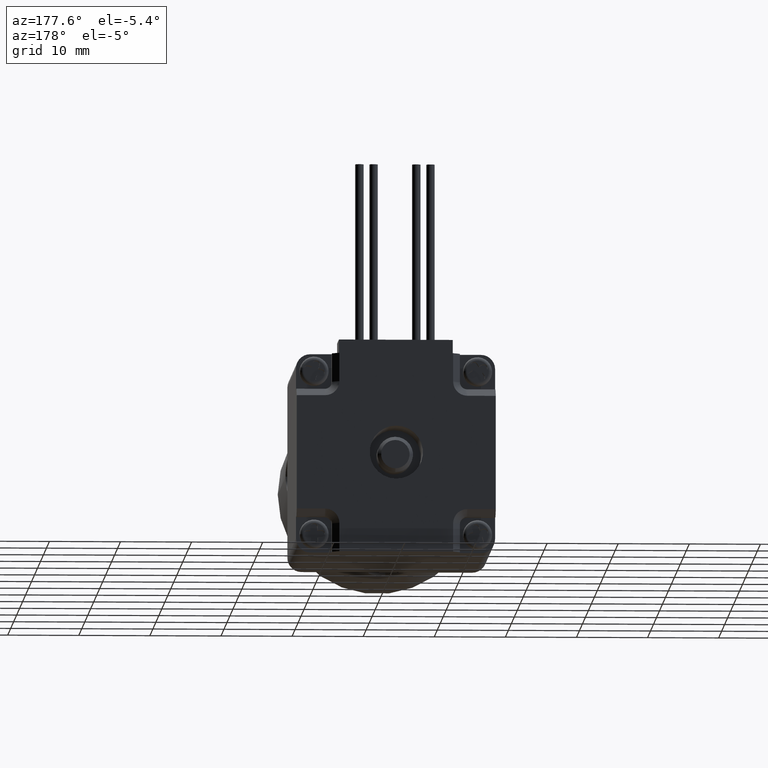
[diagram: clean part render]
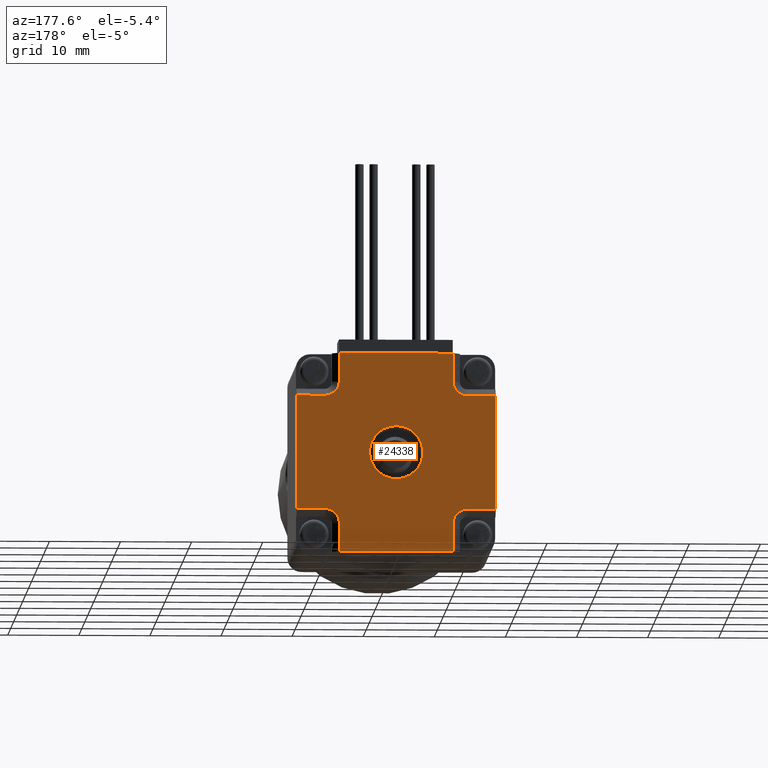
[diagram: same view with one face highlighted and labeled with its STEP entity id]
A machine part, auxiliary view. The second image highlights one B-rep face of the part: STEP entity #24338.
In plain terms, the highlighted planar face has unit normal (0, 1, 0).
Its self-contained STEP definition (entity closure, byte-faithful):
#151 = FACE_OUTER_BOUND ( 'NONE', #24249, .T. ) ;
#152 = DIRECTION ( 'NONE',  ( -8.673617379884038430E-16, 0.000000000000000000, 1.000000000000000000 ) ) ;
#326 = CARTESIAN_POINT ( 'NONE',  ( 14.00000000000000178, -1.301042606982605321E-15, -7.999999999999992895 ) ) ;
#1001 = ORIENTED_EDGE ( 'NONE', *, *, #5699, .T. ) ;
#1356 = DIRECTION ( 'NONE',  ( 0.000000000000000000, 0.000000000000000000, -1.000000000000000000 ) ) ;
#1545 = VERTEX_POINT ( 'NONE', #21141 ) ;
#1638 = LINE ( 'NONE', #21334, #16583 ) ;
#1709 = ORIENTED_EDGE ( 'NONE', *, *, #21086, .T. ) ;
#2049 = EDGE_CURVE ( 'NONE', #31070, #4554, #3796, .T. ) ;
#2093 = CARTESIAN_POINT ( 'NONE',  ( 10.00000000000000888, 0.000000000000000000, -7.999999999999996447 ) ) ;
#2152 = ORIENTED_EDGE ( 'NONE', *, *, #22777, .T. ) ;
#2239 = CARTESIAN_POINT ( 'NONE',  ( 0.000000000000000000, 0.000000000000000000, 0.000000000000000000 ) ) ;
#2890 = CARTESIAN_POINT ( 'NONE',  ( -13.99999999999999822, 0.000000000000000000, 14.00000000000000000 ) ) ;
#2959 = DIRECTION ( 'NONE',  ( 1.214306433183762757E-14, 0.000000000000000000, -1.000000000000000000 ) ) ;
#3179 = CARTESIAN_POINT ( 'NONE',  ( -13.99999999999999822, 3.252606517456513302E-16, 8.000000000000000000 ) ) ;
#3229 = CARTESIAN_POINT ( 'NONE',  ( 8.000000000000000000, 0.000000000000000000, 10.00000000000000533 ) ) ;
#3756 = DIRECTION ( 'NONE',  ( 0.000000000000000000, -1.000000000000000000, 0.000000000000000000 ) ) ;
#3796 = LINE ( 'NONE', #20936, #8178 ) ;
#3852 = LINE ( 'NONE', #21003, #21119 ) ;
#3885 = VECTOR ( 'NONE', #152, 1000.000000000000000 ) ;
#4059 = DIRECTION ( 'NONE',  ( 0.000000000000000000, 0.000000000000000000, -1.000000000000000000 ) ) ;
#4380 = AXIS2_PLACEMENT_3D ( 'NONE', #28286, #3756, #1356 ) ;
#4540 = DIRECTION ( 'NONE',  ( -0.000000000000000000, 1.000000000000000000, -0.000000000000000000 ) ) ;
#4554 = VERTEX_POINT ( 'NONE', #326 ) ;
#4732 = VECTOR ( 'NONE', #29393, 1000.000000000000000 ) ;
#4750 = EDGE_CURVE ( 'NONE', #14604, #31070, #10159, .T. ) ;
#4796 = VERTEX_POINT ( 'NONE', #8325 ) ;
#5037 = CARTESIAN_POINT ( 'NONE',  ( 14.00000000000000178, 0.000000000000000000, 14.00000000000000000 ) ) ;
#5077 = ORIENTED_EDGE ( 'NONE', *, *, #15554, .T. ) ;
#5204 = DIRECTION ( 'NONE',  ( 0.000000000000000000, 0.000000000000000000, -1.000000000000000000 ) ) ;
#5285 = DIRECTION ( 'NONE',  ( 0.000000000000000000, 0.000000000000000000, -1.000000000000000000 ) ) ;
#5699 = EDGE_CURVE ( 'NONE', #15727, #4796, #16504, .T. ) ;
#5750 = ORIENTED_EDGE ( 'NONE', *, *, #21555, .F. ) ;
#5771 = ORIENTED_EDGE ( 'NONE', *, *, #13333, .F. ) ;
#5781 = EDGE_CURVE ( 'NONE', #19873, #4554, #15455, .T. ) ;
#5900 = CARTESIAN_POINT ( 'NONE',  ( -10.00000000000000178, 0.000000000000000000, -10.00000000000000533 ) ) ;
#6074 = ORIENTED_EDGE ( 'NONE', *, *, #22656, .F. ) ;
#6231 = VERTEX_POINT ( 'NONE', #25850 ) ;
#6947 = DIRECTION ( 'NONE',  ( 1.000000000000000000, 0.000000000000000000, 0.000000000000000000 ) ) ;
#7017 = VERTEX_POINT ( 'NONE', #22647 ) ;
#7191 = CARTESIAN_POINT ( 'NONE',  ( 7.999999999999996447, 0.000000000000000000, 14.00000000000000178 ) ) ;
#7377 = ORIENTED_EDGE ( 'NONE', *, *, #25915, .F. ) ;
#7828 = LINE ( 'NONE', #19540, #27725 ) ;
#8178 = VECTOR ( 'NONE', #18843, 1000.000000000000000 ) ;
#8325 = CARTESIAN_POINT ( 'NONE',  ( -10.00000000000001421, 0.000000000000000000, 7.999999999999998224 ) ) ;
#8608 = DIRECTION ( 'NONE',  ( 0.000000000000000000, 0.000000000000000000, -1.000000000000000000 ) ) ;
#8777 = VECTOR ( 'NONE', #18558, 1000.000000000000000 ) ;
#9219 = EDGE_CURVE ( 'NONE', #6231, #18320, #10495, .T. ) ;
#10159 = CIRCLE ( 'NONE', #13252, 2.000000000000003553 ) ;
#10372 = CARTESIAN_POINT ( 'NONE',  ( 0.000000000000000000, 0.000000000000000000, 0.000000000000000000 ) ) ;
#10495 = CIRCLE ( 'NONE', #4380, 3.750000000000000000 ) ;
#10566 = CARTESIAN_POINT ( 'NONE',  ( -13.99999999999999822, 0.000000000000000000, -8.000000000000001776 ) ) ;
#10861 = DIRECTION ( 'NONE',  ( -0.000000000000000000, 1.000000000000000000, -0.000000000000000000 ) ) ;
#11199 = EDGE_CURVE ( 'NONE', #15863, #7017, #1638, .T. ) ;
#11401 = DIRECTION ( 'NONE',  ( 1.000000000000000000, 0.000000000000000000, 4.336808689942021187E-16 ) ) ;
#11869 = VECTOR ( 'NONE', #31219, 1000.000000000000000 ) ;
#11879 = DIRECTION ( 'NONE',  ( 0.000000000000000000, 0.000000000000000000, -1.000000000000000000 ) ) ;
#11909 = VECTOR ( 'NONE', #5204, 1000.000000000000000 ) ;
#11954 = VERTEX_POINT ( 'NONE', #26669 ) ;
#12002 = DIRECTION ( 'NONE',  ( 0.000000000000000000, -1.000000000000000000, 0.000000000000000000 ) ) ;
#12149 = LINE ( 'NONE', #7191, #3885 ) ;
#12253 = VERTEX_POINT ( 'NONE', #30671 ) ;
#12673 = CARTESIAN_POINT ( 'NONE',  ( -8.000000000000001776, 0.000000000000000000, 10.00000000000001954 ) ) ;
#13027 = EDGE_CURVE ( 'NONE', #13827, #25037, #12149, .T. ) ;
#13058 = CARTESIAN_POINT ( 'NONE',  ( -10.00000000000000533, 0.000000000000000000, 10.00000000000000178 ) ) ;
#13136 = CARTESIAN_POINT ( 'NONE',  ( 10.00000000000000888, 0.000000000000000000, -10.00000000000000178 ) ) ;
#13201 = VERTEX_POINT ( 'NONE', #3179 ) ;
#13252 = AXIS2_PLACEMENT_3D ( 'NONE', #13136, #22902, #5285 ) ;
#13333 = EDGE_CURVE ( 'NONE', #18320, #6231, #19272, .T. ) ;
#13827 = VERTEX_POINT ( 'NONE', #3229 ) ;
#14214 = CARTESIAN_POINT ( 'NONE',  ( 8.000000000000005329, 0.000000000000000000, -10.00000000000000178 ) ) ;
#14604 = VERTEX_POINT ( 'NONE', #14214 ) ;
#14628 = LINE ( 'NONE', #24416, #4732 ) ;
#14886 = DIRECTION ( 'NONE',  ( 0.000000000000000000, -0.000000000000000000, -1.000000000000000000 ) ) ;
#15362 = ORIENTED_EDGE ( 'NONE', *, *, #25640, .T. ) ;
#15455 = LINE ( 'NONE', #5037, #11909 ) ;
#15554 = EDGE_CURVE ( 'NONE', #12253, #1545, #16366, .T. ) ;
#15675 = LINE ( 'NONE', #30596, #8777 ) ;
#15727 = VERTEX_POINT ( 'NONE', #12673 ) ;
#15828 = DIRECTION ( 'NONE',  ( 0.000000000000000000, 0.000000000000000000, -1.000000000000000000 ) ) ;
#15863 = VERTEX_POINT ( 'NONE', #10566 ) ;
#16187 = CARTESIAN_POINT ( 'NONE',  ( 14.00000000000000178, 0.000000000000000000, 8.000000000000003553 ) ) ;
#16245 = CARTESIAN_POINT ( 'NONE',  ( 10.00000000000000533, 0.000000000000000000, 10.00000000000000533 ) ) ;
#16366 = LINE ( 'NONE', #23908, #23900 ) ;
#16504 = CIRCLE ( 'NONE', #30854, 2.000000000000003553 ) ;
#16583 = VECTOR ( 'NONE', #11401, 1000.000000000000000 ) ;
#16612 = CARTESIAN_POINT ( 'NONE',  ( 10.00000000000000533, 0.000000000000000000, 8.000000000000003553 ) ) ;
#17601 = DIRECTION ( 'NONE',  ( 0.000000000000000000, 0.000000000000000000, -1.000000000000000000 ) ) ;
#18320 = VERTEX_POINT ( 'NONE', #29229 ) ;
#18558 = DIRECTION ( 'NONE',  ( 4.336808689942021187E-16, 0.000000000000000000, 1.000000000000000000 ) ) ;
#18843 = DIRECTION ( 'NONE',  ( 1.000000000000000000, 0.000000000000000000, -0.000000000000000000 ) ) ;
#19272 = CIRCLE ( 'NONE', #28468, 3.750000000000000000 ) ;
#19540 = CARTESIAN_POINT ( 'NONE',  ( -8.000000000000001776, 0.000000000000000000, 10.00000000000001066 ) ) ;
#19542 = CIRCLE ( 'NONE', #21596, 2.000000000000005329 ) ;
#19873 = VERTEX_POINT ( 'NONE', #16187 ) ;
#20172 = DIRECTION ( 'NONE',  ( 0.000000000000000000, -1.000000000000000000, 0.000000000000000000 ) ) ;
#20417 = EDGE_CURVE ( 'NONE', #27085, #14604, #15675, .T. ) ;
#20469 = EDGE_CURVE ( 'NONE', #7017, #12253, #19542, .T. ) ;
#20614 = EDGE_CURVE ( 'NONE', #19873, #11954, #28986, .T. ) ;
#20690 = VECTOR ( 'NONE', #6947, 1000.000000000000000 ) ;
#20936 = CARTESIAN_POINT ( 'NONE',  ( 14.00000000000000533, 0.000000000000000000, -7.999999999999996447 ) ) ;
#21003 = CARTESIAN_POINT ( 'NONE',  ( -13.99999999999999822, 0.000000000000000000, -14.00000000000000000 ) ) ;
#21086 = EDGE_CURVE ( 'NONE', #4796, #13201, #14628, .T. ) ;
#21119 = VECTOR ( 'NONE', #30796, 1000.000000000000000 ) ;
#21141 = CARTESIAN_POINT ( 'NONE',  ( -7.999999999999996447, 3.252606517456513302E-16, -14.00000000000000000 ) ) ;
#21334 = CARTESIAN_POINT ( 'NONE',  ( -10.00000000000000178, 0.000000000000000000, -8.000000000000000000 ) ) ;
#21555 = EDGE_CURVE ( 'NONE', #27085, #1545, #3852, .T. ) ;
#21596 = AXIS2_PLACEMENT_3D ( 'NONE', #5900, #10861, #15828 ) ;
#22128 = ORIENTED_EDGE ( 'NONE', *, *, #20469, .T. ) ;
#22255 = FACE_BOUND ( 'NONE', #26661, .T. ) ;
#22647 = CARTESIAN_POINT ( 'NONE',  ( -10.00000000000000178, 0.000000000000000000, -8.000000000000000000 ) ) ;
#22656 = EDGE_CURVE ( 'NONE', #28936, #25037, #31483, .T. ) ;
#22777 = EDGE_CURVE ( 'NONE', #11954, #13827, #30425, .T. ) ;
#22902 = DIRECTION ( 'NONE',  ( -0.000000000000000000, 1.000000000000000000, -0.000000000000000000 ) ) ;
#22906 = ORIENTED_EDGE ( 'NONE', *, *, #13027, .T. ) ;
#22976 = ORIENTED_EDGE ( 'NONE', *, *, #4750, .T. ) ;
#23323 = CARTESIAN_POINT ( 'NONE',  ( 7.999999999999991118, -1.843143693225357538E-15, 14.00000000000000000 ) ) ;
#23900 = VECTOR ( 'NONE', #11879, 1000.000000000000000 ) ;
#23908 = CARTESIAN_POINT ( 'NONE',  ( -7.999999999999994671, 0.000000000000000000, -14.00000000000000178 ) ) ;
#24249 = EDGE_LOOP ( 'NONE', ( #7377, #24901, #22128, #5077, #5750, #25906, #22976, #30651, #26818, #27147, #2152, #22906, #6074, #15362, #1001, #1709 ) ) ;
#24338 = ADVANCED_FACE ( 'NONE', ( #151, #22255 ), #24363, .T. ) ;
#24363 = PLANE ( 'NONE',  #24610 ) ;
#24416 = CARTESIAN_POINT ( 'NONE',  ( -13.99999999999999822, 0.000000000000000000, 7.999999999999998224 ) ) ;
#24610 = AXIS2_PLACEMENT_3D ( 'NONE', #2239, #12002, #14886 ) ;
#24901 = ORIENTED_EDGE ( 'NONE', *, *, #11199, .T. ) ;
#25037 = VERTEX_POINT ( 'NONE', #23323 ) ;
#25640 = EDGE_CURVE ( 'NONE', #28936, #15727, #7828, .T. ) ;
#25850 = CARTESIAN_POINT ( 'NONE',  ( 0.000000000000000000, 0.000000000000000000, -3.750000000000000000 ) ) ;
#25906 = ORIENTED_EDGE ( 'NONE', *, *, #20417, .T. ) ;
#25915 = EDGE_CURVE ( 'NONE', #15863, #13201, #29673, .T. ) ;
#26661 = EDGE_LOOP ( 'NONE', ( #30320, #5771 ) ) ;
#26669 = CARTESIAN_POINT ( 'NONE',  ( 10.00000000000000533, 0.000000000000000000, 8.000000000000001776 ) ) ;
#26818 = ORIENTED_EDGE ( 'NONE', *, *, #5781, .F. ) ;
#27085 = VERTEX_POINT ( 'NONE', #30900 ) ;
#27147 = ORIENTED_EDGE ( 'NONE', *, *, #20614, .T. ) ;
#27566 = DIRECTION ( 'NONE',  ( -0.000000000000000000, -0.000000000000000000, 1.000000000000000000 ) ) ;
#27725 = VECTOR ( 'NONE', #17601, 1000.000000000000000 ) ;
#28286 = CARTESIAN_POINT ( 'NONE',  ( 0.000000000000000000, 0.000000000000000000, 0.000000000000000000 ) ) ;
#28468 = AXIS2_PLACEMENT_3D ( 'NONE', #10372, #20172, #8608 ) ;
#28909 = CARTESIAN_POINT ( 'NONE',  ( -8.000000000000001776, 0.000000000000000000, 14.00000000000000000 ) ) ;
#28936 = VERTEX_POINT ( 'NONE', #28909 ) ;
#28986 = LINE ( 'NONE', #16612, #11869 ) ;
#29229 = CARTESIAN_POINT ( 'NONE',  ( 4.592425496802573972E-16, 0.000000000000000000, 3.750000000000000000 ) ) ;
#29393 = DIRECTION ( 'NONE',  ( -1.000000000000000000, 0.000000000000000000, 0.000000000000000000 ) ) ;
#29403 = AXIS2_PLACEMENT_3D ( 'NONE', #16245, #4540, #4059 ) ;
#29673 = LINE ( 'NONE', #2890, #30296 ) ;
#29744 = DIRECTION ( 'NONE',  ( -0.000000000000000000, 1.000000000000000000, -0.000000000000000000 ) ) ;
#30296 = VECTOR ( 'NONE', #27566, 1000.000000000000000 ) ;
#30320 = ORIENTED_EDGE ( 'NONE', *, *, #9219, .F. ) ;
#30425 = CIRCLE ( 'NONE', #29403, 2.000000000000003553 ) ;
#30596 = CARTESIAN_POINT ( 'NONE',  ( 8.000000000000007105, 0.000000000000000000, -10.00000000000000178 ) ) ;
#30651 = ORIENTED_EDGE ( 'NONE', *, *, #2049, .T. ) ;
#30671 = CARTESIAN_POINT ( 'NONE',  ( -7.999999999999994671, 0.000000000000000000, -10.00000000000000533 ) ) ;
#30796 = DIRECTION ( 'NONE',  ( -1.000000000000000000, -0.000000000000000000, -0.000000000000000000 ) ) ;
#30854 = AXIS2_PLACEMENT_3D ( 'NONE', #13058, #29744, #2959 ) ;
#30900 = CARTESIAN_POINT ( 'NONE',  ( 8.000000000000007105, 0.000000000000000000, -14.00000000000000000 ) ) ;
#31010 = CARTESIAN_POINT ( 'NONE',  ( -13.99999999999999822, 0.000000000000000000, 14.00000000000000000 ) ) ;
#31070 = VERTEX_POINT ( 'NONE', #2093 ) ;
#31219 = DIRECTION ( 'NONE',  ( -1.000000000000000000, 0.000000000000000000, 0.000000000000000000 ) ) ;
#31483 = LINE ( 'NONE', #31010, #20690 ) ;